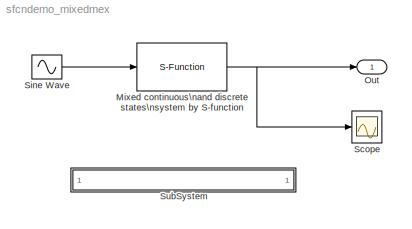
MODEL sfcndemo_mixedmex
KIND model
BLOCK [S-Function] Mixed continuous\nand discrete states\nsystem by S-function
  FunctionName = mixedmex
  MaskDescription = A single-input, single-output system with mixed continuous and discrete states by a S-function.
  MaskDisplay = disp('Single Input\\nSingle Output');
  MaskIconFrame = on
  MaskIconOpaque = on
  MaskIconRotate = none
  MaskIconUnits = autoscale
  MaskType = S-function: mixedmex
  Ports = [1, 1]
BLOCK [Outport] Out
  IconDisplay = Port number
  InitialOutput = 0
BLOCK [Scope] Scope
  DataFormat = StructureWithTime
  NumInputPorts = 1
  Ports = [1]
  TimeRange = 10
  YMax = 3
  YMin = 1
BLOCK [Sin] Sine Wave
  Ports = [0, 1]
  SampleTime = 0
BLOCK [SubSystem] SubSystem
  MaskDisplay = disp('matlabroot<path>');
  MaskIconFrame = on
  MaskIconOpaque = on
  MaskIconRotate = none
  MaskIconUnits = autoscale
  MinAlgLoopOccurrences = off
  OpenFcn = edit(fullfile(matlabroot,'simulink','src','mixedmex.c'))
  Ports = []
  PropExecContextAcrossSSBoundary = on
  RTWSystemCode = Auto
  TreatAsAtomicUnit = off
NET Mixed continuous\nand discrete states\nsystem by S-function:1 -> Out:1, Scope:1
LINE Sine Wave:1 -> Mixed continuous\nand discrete states\nsystem by S-function:1
note: NET lines group one-source signal fan-out (src -> all destinations, sorted); 1:1 wires keep LINE
note: 1 file-system path scrubbed to <path> (not preserved elsewhere — flat text is the only slx artifact)
